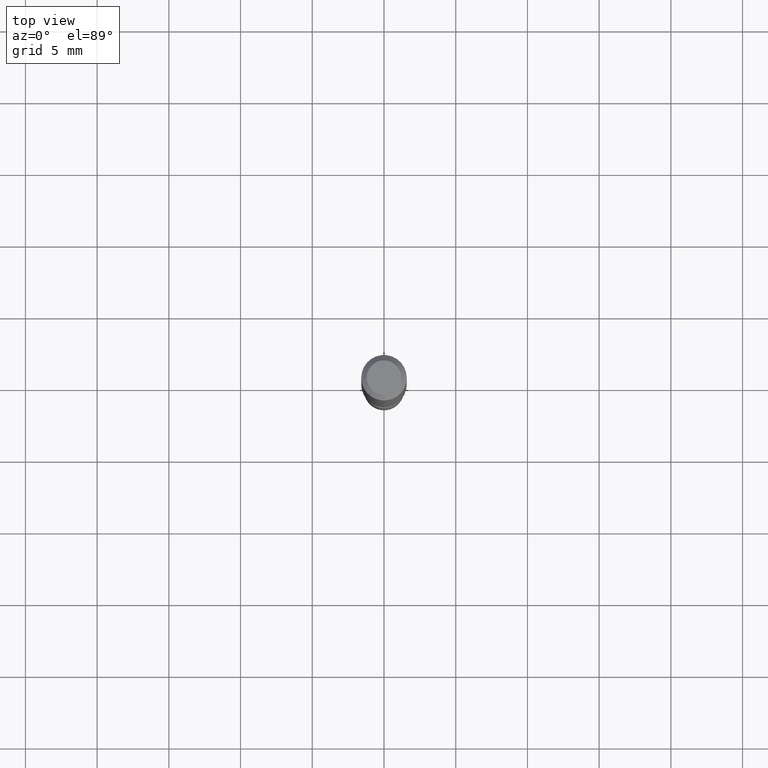
[diagram: clean part render]
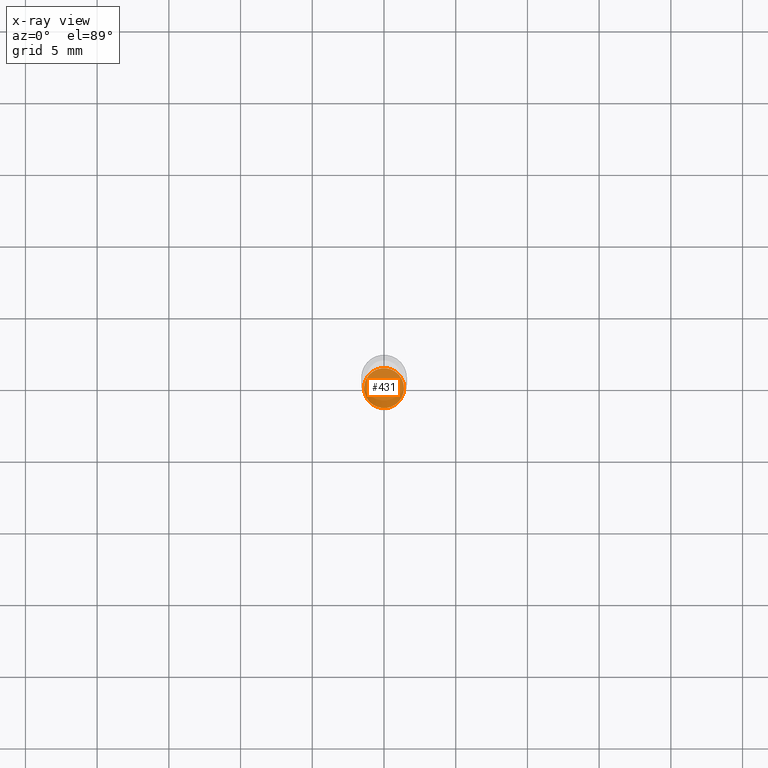
[diagram: x-ray — body ghosted, one internal face saturated and labeled with its STEP entity id]
A machine part, top view, then the same camera in x-ray: the body is ghosted and one INTERNAL B-rep face — a face not visible from any outside direction — is saturated and labeled: STEP entity #431.
In plain terms, the highlighted planar face has unit normal (-0, 0, 1).
Its self-contained STEP definition (entity closure, byte-faithful):
#49 = EDGE_LOOP ( 'NONE', ( #453, #178 ) ) ;
#62 = CARTESIAN_POINT ( 'NONE',  ( 4.083932906329177803E-29, -5.830773835868053056E-15, -1.669999999999999929 ) ) ;
#123 = DIRECTION ( 'NONE',  ( 1.000000000000000000, -6.982962677686265922E-15, 4.876176775795935793E-29 ) ) ;
#178 = ORIENTED_EDGE ( 'NONE', *, *, #321, .F. ) ;
#188 = EDGE_CURVE ( 'NONE', #373, #507, #263, .T. ) ;
#203 = AXIS2_PLACEMENT_3D ( 'NONE', #62, #379, #506 ) ;
#210 = CIRCLE ( 'NONE', #341, 0.05500000000000000028 ) ;
#229 = PLANE ( 'NONE',  #353 ) ;
#262 = DIRECTION ( 'NONE',  ( 1.000000000000000000, -6.982962677686262766E-15, 0.000000000000000000 ) ) ;
#263 = CIRCLE ( 'NONE', #203, 0.05500000000000000028 ) ;
#266 = CARTESIAN_POINT ( 'NONE',  ( 0.05500000000000004191, -6.214836783140797252E-15, -1.669999999999999929 ) ) ;
#267 = FACE_OUTER_BOUND ( 'NONE', #49, .T. ) ;
#272 = DIRECTION ( 'NONE',  ( -2.445468806185136597E-29, 3.491481338843145583E-15, 1.000000000000000000 ) ) ;
#281 = CARTESIAN_POINT ( 'NONE',  ( 3.840629472727855124E-16, 0.05499999999999417161, -1.670000000000000151 ) ) ;
#303 = CARTESIAN_POINT ( 'NONE',  ( 4.083932906329177803E-29, -5.830773835868053056E-15, -1.669999999999999929 ) ) ;
#321 = EDGE_CURVE ( 'NONE', #507, #373, #210, .T. ) ;
#341 = AXIS2_PLACEMENT_3D ( 'NONE', #303, #272, #262 ) ;
#353 = AXIS2_PLACEMENT_3D ( 'NONE', #281, #434, #123 ) ;
#373 = VERTEX_POINT ( 'NONE', #266 ) ;
#379 = DIRECTION ( 'NONE',  ( -2.445468806185136597E-29, 3.491481338843145583E-15, 1.000000000000000000 ) ) ;
#403 = CARTESIAN_POINT ( 'NONE',  ( -0.05500000000000004191, -5.439975331199998395E-15, -1.669999999999999929 ) ) ;
#431 = ADVANCED_FACE ( 'NONE', ( #267 ), #229, .F. ) ;
#434 = DIRECTION ( 'NONE',  ( -2.438088387897960049E-29, 3.491481338843145188E-15, 1.000000000000000000 ) ) ;
#453 = ORIENTED_EDGE ( 'NONE', *, *, #188, .F. ) ;
#506 = DIRECTION ( 'NONE',  ( 1.000000000000000000, -6.982962677686262766E-15, 0.000000000000000000 ) ) ;
#507 = VERTEX_POINT ( 'NONE', #403 ) ;